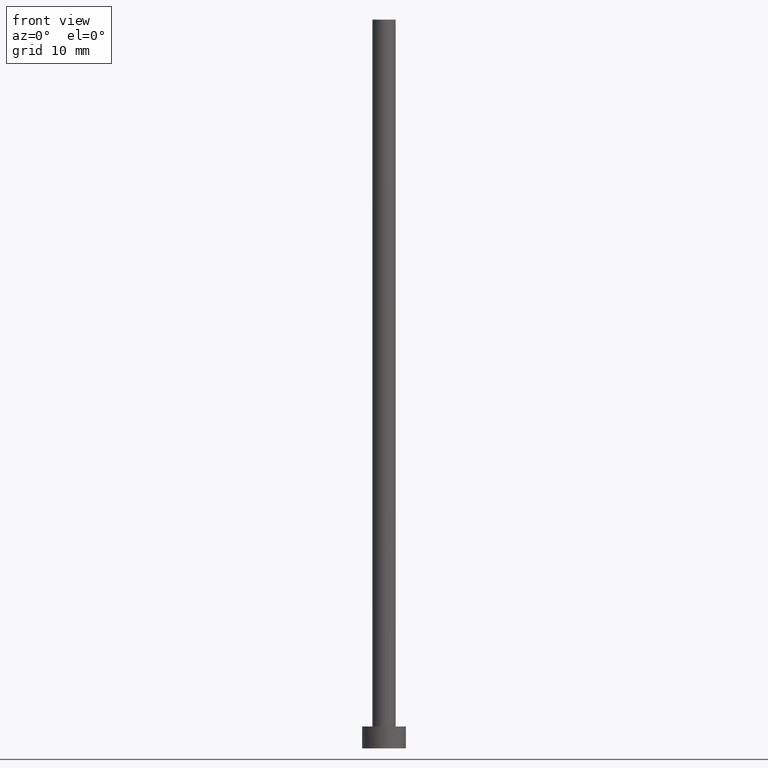
[diagram: clean part render]
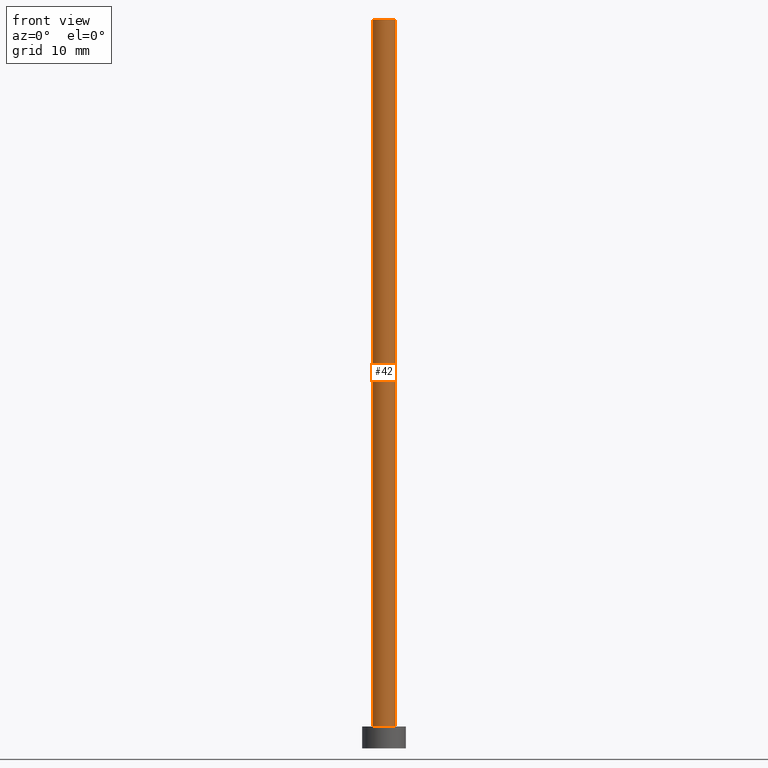
[diagram: same view with one face highlighted and labeled with its STEP entity id]
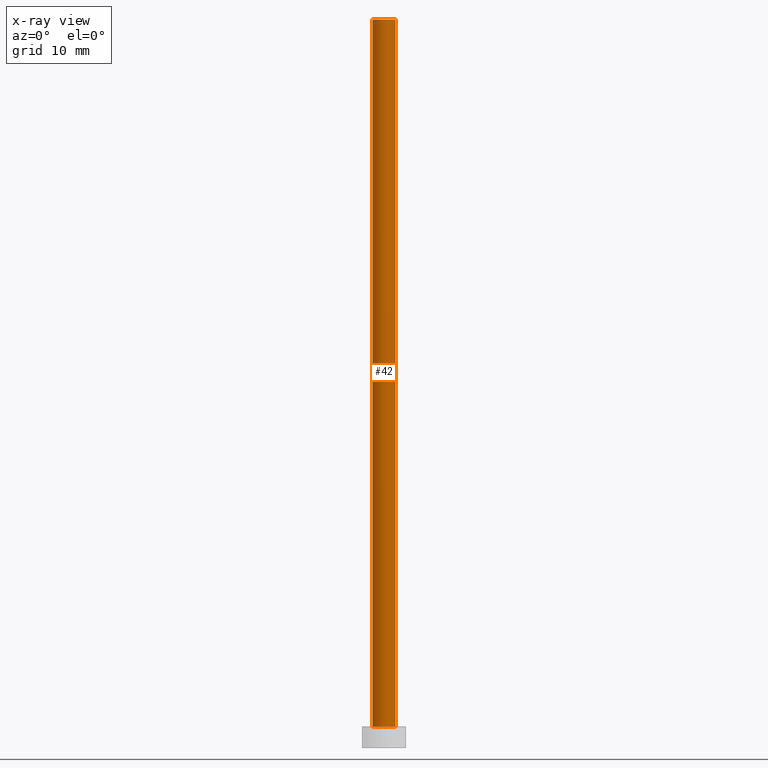
[diagram: x-ray of the same camera — body ghosted, the highlighted face saturated]
A machine part, front view. The second image highlights one B-rep face of the part: STEP entity #42.
The next image is the same camera in x-ray: the body ghosted, the highlighted face saturated — about 0% of this face is hidden behind the body in this view.
In plain terms, the highlighted cylindrical surface (edge-blend (fillet) strip) has radius 1.6 mm, axis along (-0, -0, -1).
Its self-contained STEP definition (entity closure, byte-faithful):
#4 = EDGE_CURVE ( 'NONE', #70, #14, #220, .T. ) ;
#9 = ORIENTED_EDGE ( 'NONE', *, *, #4, .T. ) ;
#14 = VERTEX_POINT ( 'NONE', #197 ) ;
#20 = CARTESIAN_POINT ( 'NONE',  ( 1.600000000000000089, 1.959434878635764737E-16, 3.000000000000000000 ) ) ;
#21 = CARTESIAN_POINT ( 'NONE',  ( 0.000000000000000000, 0.000000000000000000, 100.0000000000000000 ) ) ;
#38 = CARTESIAN_POINT ( 'NONE',  ( -1.600000000000000089, 0.000000000000000000, 100.0000000000000000 ) ) ;
#41 = VECTOR ( 'NONE', #48, 1000.000000000000000 ) ;
#42 = ADVANCED_FACE ( 'NONE', ( #82 ), #240, .T. ) ;
#48 = DIRECTION ( 'NONE',  ( -0.000000000000000000, -0.000000000000000000, -1.000000000000000000 ) ) ;
#51 = DIRECTION ( 'NONE',  ( -0.000000000000000000, -0.000000000000000000, -1.000000000000000000 ) ) ;
#54 = VERTEX_POINT ( 'NONE', #20 ) ;
#64 = AXIS2_PLACEMENT_3D ( 'NONE', #135, #51, #178 ) ;
#70 = VERTEX_POINT ( 'NONE', #38 ) ;
#75 = DIRECTION ( 'NONE',  ( -0.000000000000000000, -0.000000000000000000, -1.000000000000000000 ) ) ;
#82 = FACE_OUTER_BOUND ( 'NONE', #183, .T. ) ;
#87 = LINE ( 'NONE', #161, #142 ) ;
#91 = DIRECTION ( 'NONE',  ( 0.000000000000000000, 0.000000000000000000, 1.000000000000000000 ) ) ;
#99 = ORIENTED_EDGE ( 'NONE', *, *, #199, .F. ) ;
#107 = DIRECTION ( 'NONE',  ( 1.000000000000000000, 0.000000000000000000, 0.000000000000000000 ) ) ;
#115 = ORIENTED_EDGE ( 'NONE', *, *, #208, .T. ) ;
#130 = AXIS2_PLACEMENT_3D ( 'NONE', #21, #91, #107 ) ;
#135 = CARTESIAN_POINT ( 'NONE',  ( 0.000000000000000000, 0.000000000000000000, 100.0000000000000000 ) ) ;
#142 = VECTOR ( 'NONE', #75, 1000.000000000000000 ) ;
#145 = CARTESIAN_POINT ( 'NONE',  ( 1.600000000000000089, 1.959434878635764737E-16, 100.0000000000000000 ) ) ;
#161 = CARTESIAN_POINT ( 'NONE',  ( 1.600000000000000089, 1.959434878635764737E-16, 100.0000000000000000 ) ) ;
#167 = DIRECTION ( 'NONE',  ( 1.000000000000000000, 0.000000000000000000, 0.000000000000000000 ) ) ;
#170 = CIRCLE ( 'NONE', #209, 1.600000000000000089 ) ;
#178 = DIRECTION ( 'NONE',  ( -1.000000000000000000, 0.000000000000000000, 0.000000000000000000 ) ) ;
#183 = EDGE_LOOP ( 'NONE', ( #99, #239, #9, #115 ) ) ;
#190 = CARTESIAN_POINT ( 'NONE',  ( 0.000000000000000000, 0.000000000000000000, 3.000000000000000000 ) ) ;
#196 = CIRCLE ( 'NONE', #130, 1.600000000000000089 ) ;
#197 = CARTESIAN_POINT ( 'NONE',  ( -1.600000000000000089, 0.000000000000000000, 3.000000000000000000 ) ) ;
#199 = EDGE_CURVE ( 'NONE', #202, #54, #87, .T. ) ;
#200 = CARTESIAN_POINT ( 'NONE',  ( -1.600000000000000089, 0.000000000000000000, 100.0000000000000000 ) ) ;
#202 = VERTEX_POINT ( 'NONE', #145 ) ;
#208 = EDGE_CURVE ( 'NONE', #14, #54, #170, .T. ) ;
#209 = AXIS2_PLACEMENT_3D ( 'NONE', #190, #234, #167 ) ;
#220 = LINE ( 'NONE', #200, #41 ) ;
#234 = DIRECTION ( 'NONE',  ( 0.000000000000000000, 0.000000000000000000, 1.000000000000000000 ) ) ;
#239 = ORIENTED_EDGE ( 'NONE', *, *, #251, .F. ) ;
#240 = CYLINDRICAL_SURFACE ( 'NONE', #64, 1.600000000000000089 ) ;
#251 = EDGE_CURVE ( 'NONE', #70, #202, #196, .T. ) ;